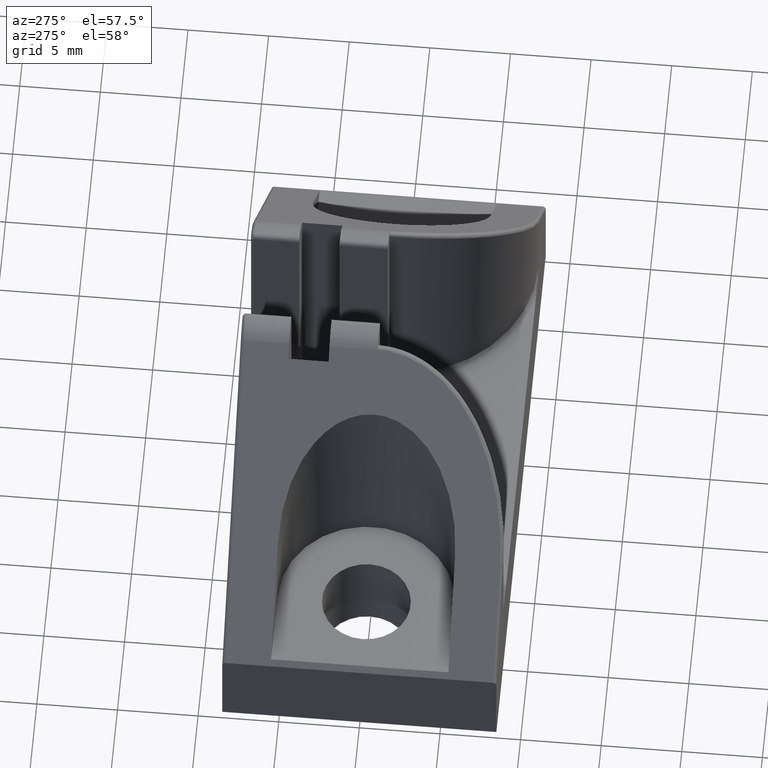
[diagram: clean part render]
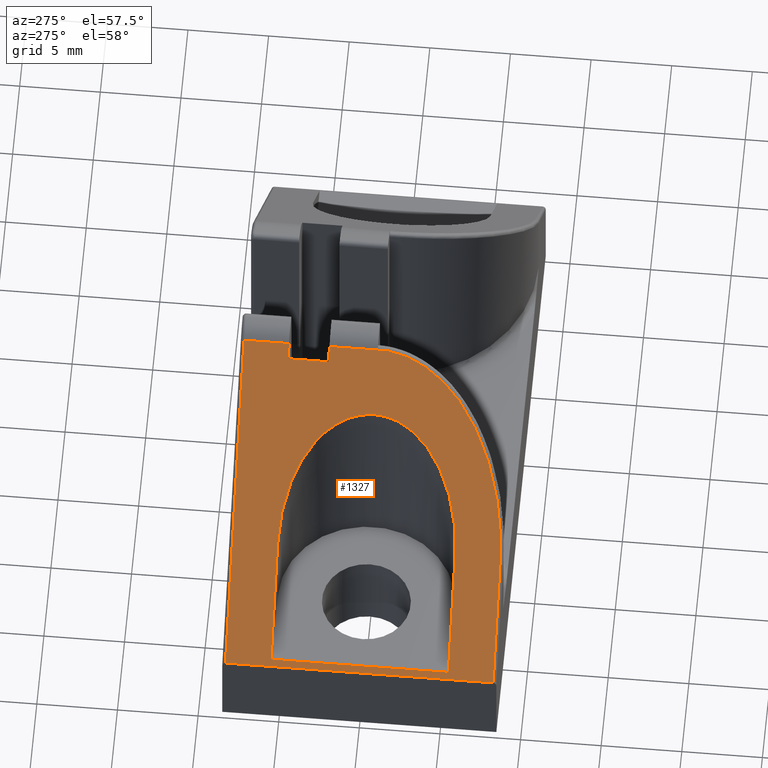
[diagram: same view with one face highlighted and labeled with its STEP entity id]
A machine part, auxiliary view. The second image highlights one B-rep face of the part: STEP entity #1327.
In plain terms, the highlighted planar face has unit normal (-0.7848, 0, 0.6198).
Its self-contained STEP definition (entity closure, byte-faithful):
#19=B_SPLINE_CURVE_WITH_KNOTS('',3,(#2435,#2436,#2437,#2438,#2439,#2440,
#2441,#2442,#2443,#2444,#2445,#2446,#2447,#2448,#2449,#2450,#2451,#2452,
#2453,#2454,#2455,#2456,#2457,#2458,#2459,#2460,#2461,#2462,#2463,#2464,
#2465,#2466,#2467,#2468,#2469,#2470,#2471,#2472,#2473,#2474,#2475,#2476,
#2477,#2478,#2479,#2480,#2481,#2482,#2483,#2484,#2485,#2486,#2487,#2488,
#2489,#2490,#2491,#2492,#2493,#2494,#2495,#2496,#2497,#2498,#2499,#2500,
#2501,#2502,#2503,#2504,#2505,#2506,#2507,#2508,#2509,#2510,#2511,#2512,
#2513,#2514,#2515,#2516,#2517,#2518,#2519,#2520,#2521,#2522,#2523,#2524,
#2525,#2526,#2527,#2528,#2529,#2530,#2531,#2532,#2533,#2534,#2535,#2536,
#2537,#2538,#2539,#2540,#2541,#2542,#2543,#2544,#2545,#2546,#2547,#2548,
#2549,#2550,#2551,#2552,#2553,#2554,#2555,#2556,#2557,#2558),
 .UNSPECIFIED.,.F.,.F.,(4,3,3,3,3,3,3,3,3,3,3,3,3,3,3,3,3,3,3,3,3,3,3,3,
3,3,3,3,3,3,3,3,3,3,3,3,3,3,3,3,3,4),(-69.088201980225,-68.6151122974842,
-68.5686881133644,-68.4944712512097,-68.0491732427177,-67.9007405221944,
-67.3530433922091,-67.307009793179,-67.0101495746902,-66.7132790641638,
-66.1195483351485,-65.5608625875906,-65.5258176061331,-64.9748415939148,
-64.9320868771178,-64.3837014398548,-64.3383561481025,-63.7604489799912,
-63.1930685703342,-63.1508946900719,-62.8540356135924,-62.5571639610566,
-61.9634332320413,-61.369702503026,-60.7759717740107,-60.1822410449954,
-59.5680239844509,-58.9947795869647,-58.6979168506472,-58.4010488579494,
-57.8073181289341,-57.2135873999188,-56.6198566709035,-56.0261259418882,
-55.4323952128729,-54.8386644838576,-54.541805350267,-53.8750520091837,
-53.651203025827,-53.5027690604448,-52.7649401761457,-52.4637415677966),
 .UNSPECIFIED.);
#52=FACE_BOUND('',#201,.T.);
#57=ELLIPSE('',#1412,8.87359081631341,5.49994999997799);
#74=PLANE('',#1451);
#118=FACE_OUTER_BOUND('',#200,.T.);
#200=EDGE_LOOP('',(#987,#988,#989,#990,#991,#992,#993,#994,#995));
#201=EDGE_LOOP('',(#996,#997,#998,#999));
#344=LINE('',#1972,#446);
#348=LINE('',#1984,#450);
#350=LINE('',#1987,#452);
#364=LINE('',#2030,#466);
#365=LINE('',#2174,#467);
#366=LINE('',#2181,#468);
#374=LINE('',#3070,#476);
#376=LINE('',#3075,#478);
#383=LINE('',#3095,#485);
#384=LINE('',#3097,#486);
#385=LINE('',#3098,#487);
#446=VECTOR('',#1579,7.59947043811487);
#450=VECTOR('',#1591,7.59947043811487);
#452=VECTOR('',#1595,10.999899999956);
#466=VECTOR('',#1635,0.997078000057022);
#467=VECTOR('',#1644,3.64306990235619);
#468=VECTOR('',#1651,7.81375141898086);
#476=VECTOR('',#1677,16.5998999939716);
#478=VECTOR('',#1681,21.1645131956356);
#485=VECTOR('',#1700,2.49999999998997);
#486=VECTOR('',#1701,0.997078000057022);
#487=VECTOR('',#1702,2.79999999700795);
#550=VERTEX_POINT('',#1970);
#551=VERTEX_POINT('',#1971);
#553=VERTEX_POINT('',#1977);
#555=VERTEX_POINT('',#1983);
#570=VERTEX_POINT('',#2027);
#571=VERTEX_POINT('',#2029);
#575=VERTEX_POINT('',#2158);
#577=VERTEX_POINT('',#2178);
#578=VERTEX_POINT('',#2180);
#589=VERTEX_POINT('',#3063);
#593=VERTEX_POINT('',#3074);
#600=VERTEX_POINT('',#3094);
#601=VERTEX_POINT('',#3096);
#678=EDGE_CURVE('',#550,#551,#344,.T.);
#681=EDGE_CURVE('',#551,#553,#57,.T.);
#684=EDGE_CURVE('',#553,#555,#348,.T.);
#686=EDGE_CURVE('',#550,#555,#350,.T.);
#706=EDGE_CURVE('',#571,#570,#364,.T.);
#713=EDGE_CURVE('',#571,#575,#365,.T.);
#716=EDGE_CURVE('',#577,#578,#366,.T.);
#720=EDGE_CURVE('',#575,#577,#19,.T.);
#737=EDGE_CURVE('',#589,#578,#374,.T.);
#739=EDGE_CURVE('',#593,#589,#376,.T.);
#749=EDGE_CURVE('',#600,#570,#383,.T.);
#750=EDGE_CURVE('',#601,#600,#384,.T.);
#751=EDGE_CURVE('',#593,#601,#385,.T.);
#987=ORIENTED_EDGE('',*,*,#720,.F.);
#988=ORIENTED_EDGE('',*,*,#713,.F.);
#989=ORIENTED_EDGE('',*,*,#706,.T.);
#990=ORIENTED_EDGE('',*,*,#749,.F.);
#991=ORIENTED_EDGE('',*,*,#750,.F.);
#992=ORIENTED_EDGE('',*,*,#751,.F.);
#993=ORIENTED_EDGE('',*,*,#739,.T.);
#994=ORIENTED_EDGE('',*,*,#737,.T.);
#995=ORIENTED_EDGE('',*,*,#716,.F.);
#996=ORIENTED_EDGE('',*,*,#686,.T.);
#997=ORIENTED_EDGE('',*,*,#684,.F.);
#998=ORIENTED_EDGE('',*,*,#681,.F.);
#999=ORIENTED_EDGE('',*,*,#678,.F.);
#1327=ADVANCED_FACE('',(#118,#52),#74,.T.);
#1412=AXIS2_PLACEMENT_3D('',#1978,#1584,#1585);
#1451=AXIS2_PLACEMENT_3D('',#3093,#1698,#1699);
#1579=DIRECTION('',(0.619811090440028,-1.46092156508284E-16,0.784751051077693));
#1584=DIRECTION('center_axis',(-0.784751051077679,3.795248E-17,0.619811090440046));
#1585=DIRECTION('ref_axis',(0.619811090440046,4.805214E-17,0.784751051077679));
#1591=DIRECTION('',(-0.619811090440028,1.46092156508284E-16,-0.784751051077693));
#1595=DIRECTION('',(0.,1.,0.));
#1635=DIRECTION('',(-0.619811090440594,5.56738301598102E-16,-0.784751051077246));
#1644=DIRECTION('',(0.,-1.,0.));
#1651=DIRECTION('',(-0.619811090440052,0.,-0.784751051077674));
#1677=DIRECTION('',(0.,-1.,0.));
#1681=DIRECTION('',(-0.619811090440046,-1.04913636743046E-16,-0.784751051077679));
#1698=DIRECTION('center_axis',(-0.784751051077679,3.795248E-17,0.619811090440046));
#1699=DIRECTION('ref_axis',(0.619811090440046,0.,0.784751051077679));
#1700=DIRECTION('',(0.,-1.,0.));
#1701=DIRECTION('',(-0.619811090440594,0.,-0.784751051077246));
#1702=DIRECTION('',(0.,-1.,0.));
#1970=CARTESIAN_POINT('',(-29.7102360589147,-5.49989999997797,5.99999805322659));
#1971=CARTESIAN_POINT('',(-24.9999999999,-5.49989999997797,11.9636904671711));
#1972=CARTESIAN_POINT('',(-29.7102360589147,-5.49989999997797,5.99999805322659));
#1977=CARTESIAN_POINT('',(-24.9999999999,5.499999999978,11.9636904671711));
#1978=CARTESIAN_POINT('Origin',(-24.9999999999,5.0000000017E-5,11.9636904671711));
#1983=CARTESIAN_POINT('',(-29.7102360589147,5.499999999978,5.99999805322659));
#1984=CARTESIAN_POINT('',(-24.9999999999,5.499999999978,11.9636904671711));
#1987=CARTESIAN_POINT('',(-29.7102360589147,-5.49989999997797,5.99999805322659));
#2027=CARTESIAN_POINT('',(-17.49999999993,2.99999999998821,21.4595400475328));
#2029=CARTESIAN_POINT('',(-16.8819999974603,2.99999999998821,22.2419980560835));
#2030=CARTESIAN_POINT('',(-16.8819999974603,2.99999999998821,22.2419980560835));
#2158=CARTESIAN_POINT('',(-16.8819999974594,-0.643069902367983,22.2419980560844));
#2174=CARTESIAN_POINT('',(-16.8819999974603,2.99999999998821,22.2419980560835));
#2178=CARTESIAN_POINT('',(-25.1569502124539,-8.29989999698546,11.7649737191659));
#2180=CARTESIAN_POINT('',(-29.99999999988,-8.29989999698546,5.63312408026104));
#2181=CARTESIAN_POINT('',(-25.1569502124539,-8.29989999698546,11.7649737191659));
#2435=CARTESIAN_POINT('Ctrl Pts',(-16.8819999974594,-0.643069902367983,
22.2419980560844));
#2436=CARTESIAN_POINT('Ctrl Pts',(-16.8911088207661,-0.760281202575491,
22.2304652539545));
#2437=CARTESIAN_POINT('Ctrl Pts',(-16.9027080250066,-0.877300887217781,
22.2157793446016));
#2438=CARTESIAN_POINT('Ctrl Pts',(-16.9167845582387,-0.994019413069922,
22.1979568611323));
#2439=CARTESIAN_POINT('Ctrl Pts',(-16.9181658852775,-1.00547297574953,22.1962079448396));
#2440=CARTESIAN_POINT('Ctrl Pts',(-16.9195710921083,-1.01692365142865,22.1944287939576));
#2441=CARTESIAN_POINT('Ctrl Pts',(-16.9210001827456,-1.0283713444347,22.1926194034234));
#2442=CARTESIAN_POINT('Ctrl Pts',(-16.9232848243575,-1.04667240604578,22.1897267884985));
#2443=CARTESIAN_POINT('Ctrl Pts',(-16.9256305060204,-1.06496584423065,22.1867568898398));
#2444=CARTESIAN_POINT('Ctrl Pts',(-16.9280367982853,-1.08325159068742,22.1837102512653));
#2445=CARTESIAN_POINT('Ctrl Pts',(-16.9424744492759,-1.19296528976584,22.1654305497203));
#2446=CARTESIAN_POINT('Ctrl Pts',(-16.9591179146491,-1.30238615735254,22.1443580372391));
#2447=CARTESIAN_POINT('Ctrl Pts',(-16.9779386123257,-1.41143163335236,22.1205289019517));
#2448=CARTESIAN_POINT('Ctrl Pts',(-16.9842121803746,-1.44778013784766,22.1125858541253));
#2449=CARTESIAN_POINT('Ctrl Pts',(-16.9907277554093,-1.48408681495602,22.1043363980233));
#2450=CARTESIAN_POINT('Ctrl Pts',(-16.9974844638901,-1.52034882090143,22.0957816396033));
#2451=CARTESIAN_POINT('Ctrl Pts',(-17.0224158255877,-1.65415083243758,22.0642157111623));
#2452=CARTESIAN_POINT('Ctrl Pts',(-17.0506393699034,-1.78733881498807,22.0284815074076));
#2453=CARTESIAN_POINT('Ctrl Pts',(-17.0821175596852,-1.91975504612397,21.9886265534654));
#2454=CARTESIAN_POINT('Ctrl Pts',(-17.0847632817226,-1.9308845470022,21.985276769673));
#2455=CARTESIAN_POINT('Ctrl Pts',(-17.087432008353,-1.94200857348481,21.9818978594583));
#2456=CARTESIAN_POINT('Ctrl Pts',(-17.0901237241645,-1.95312701909096,21.9784898423349));
#2457=CARTESIAN_POINT('Ctrl Pts',(-17.1074819877102,-2.02482734801259,21.9565123144163));
#2458=CARTESIAN_POINT('Ctrl Pts',(-17.1257969275086,-2.09630042121747,21.9333235261563));
#2459=CARTESIAN_POINT('Ctrl Pts',(-17.1450631666671,-2.16751075521773,21.9089302844091));
#2460=CARTESIAN_POINT('Ctrl Pts',(-17.1643300737793,-2.23872355805477,21.8845361969568));
#2461=CARTESIAN_POINT('Ctrl Pts',(-17.1845483937392,-2.30967351441826,21.8589375132377));
#2462=CARTESIAN_POINT('Ctrl Pts',(-17.2057060718431,-2.38034801449181,21.8321494852163));
#2463=CARTESIAN_POINT('Ctrl Pts',(-17.2480206945471,-2.52169456446424,21.7785743578726));
#2464=CARTESIAN_POINT('Ctrl Pts',(-17.2941051901085,-2.66191252764959,21.7202260933792));
#2465=CARTESIAN_POINT('Ctrl Pts',(-17.3438940766058,-2.80080255538341,21.6571876748395));
#2466=CARTESIAN_POINT('Ctrl Pts',(-17.3907441719664,-2.93149459334057,21.5978701016272));
#2467=CARTESIAN_POINT('Ctrl Pts',(-17.4408742037293,-3.06101027251687,21.5343998021992));
#2468=CARTESIAN_POINT('Ctrl Pts',(-17.4942210083514,-3.18918827545005,21.4668567544185));
#2469=CARTESIAN_POINT('Ctrl Pts',(-17.4975673220653,-3.19722856599922,21.4626199453225));
#2470=CARTESIAN_POINT('Ctrl Pts',(-17.5009262909304,-3.20526357622406,21.4583671135239));
#2471=CARTESIAN_POINT('Ctrl Pts',(-17.5042978984108,-3.2132932594126,21.4540982799408));
#2472=CARTESIAN_POINT('Ctrl Pts',(-17.5573061970901,-3.33953566670182,21.3869838228454));
#2473=CARTESIAN_POINT('Ctrl Pts',(-17.613438749611,-3.46446489916466,21.3159137183428));
#2474=CARTESIAN_POINT('Ctrl Pts',(-17.6726134253417,-3.58794917080525,21.2409918896866));
#2475=CARTESIAN_POINT('Ctrl Pts',(-17.6772052704426,-3.59753132129057,21.2351780947208));
#2476=CARTESIAN_POINT('Ctrl Pts',(-17.6818154328594,-3.6071047446387,21.2293411077854));
#2477=CARTESIAN_POINT('Ctrl Pts',(-17.6864438735172,-3.61666936557359,21.2234809783828));
#2478=CARTESIAN_POINT('Ctrl Pts',(-17.7458097083108,-3.7393482002514,21.1483171165779));
#2479=CARTESIAN_POINT('Ctrl Pts',(-17.8081873801677,-3.86057978894234,21.0693399134901));
#2480=CARTESIAN_POINT('Ctrl Pts',(-17.873524029698,-3.98018701092455,20.9866163140198));
#2481=CARTESIAN_POINT('Ctrl Pts',(-17.8789266338406,-3.99007717942269,20.9797760051824));
#2482=CARTESIAN_POINT('Ctrl Pts',(-17.8843494514237,-3.99995624019489,20.9729101038395));
#2483=CARTESIAN_POINT('Ctrl Pts',(-17.8897924425602,-4.00982409251476,20.9660186604929));
#2484=CARTESIAN_POINT('Ctrl Pts',(-17.9591611349249,-4.13558582805886,20.8781900380551));
#2485=CARTESIAN_POINT('Ctrl Pts',(-18.0318090504994,-4.25952650828017,20.7862095475716));
#2486=CARTESIAN_POINT('Ctrl Pts',(-18.1076324627706,-4.38148235571184,20.6902085185583));
#2487=CARTESIAN_POINT('Ctrl Pts',(-18.182074728051,-4.50121673952646,20.595956178088));
#2488=CARTESIAN_POINT('Ctrl Pts',(-18.2595769043601,-4.61903722531214,20.4978296436366));
#2489=CARTESIAN_POINT('Ctrl Pts',(-18.3400259606574,-4.734813969886,20.3959720253052));
#2490=CARTESIAN_POINT('Ctrl Pts',(-18.3460058091149,-4.74341975619746,20.3884008597764));
#2491=CARTESIAN_POINT('Ctrl Pts',(-18.3520019243994,-4.75201424766984,20.380809098602));
#2492=CARTESIAN_POINT('Ctrl Pts',(-18.3580142527313,-4.76059738947372,20.373196809873));
#2493=CARTESIAN_POINT('Ctrl Pts',(-18.4003346231831,-4.82101354120905,20.3196144269399));
#2494=CARTESIAN_POINT('Ctrl Pts',(-18.4434608735824,-4.88087330475721,20.2650117086983));
#2495=CARTESIAN_POINT('Ctrl Pts',(-18.4873708960929,-4.94015110015604,20.2094166461464));
#2496=CARTESIAN_POINT('Ctrl Pts',(-18.5312827787955,-4.99943140678309,20.1538192283804));
#2497=CARTESIAN_POINT('Ctrl Pts',(-18.5759783887479,-5.05812965833671,20.0972295231436));
#2498=CARTESIAN_POINT('Ctrl Pts',(-18.6214515744448,-5.11622555224553,20.0396553190299));
#2499=CARTESIAN_POINT('Ctrl Pts',(-18.7123960195066,-5.23241487900898,19.9245093497571));
#2500=CARTESIAN_POINT('Ctrl Pts',(-18.8064346464263,-5.34618953812483,19.8054457955643));
#2501=CARTESIAN_POINT('Ctrl Pts',(-18.9034450783871,-5.45736272693468,19.6826195996138));
#2502=CARTESIAN_POINT('Ctrl Pts',(-19.0004555103478,-5.56853591574453,19.5597934036632));
#2503=CARTESIAN_POINT('Ctrl Pts',(-19.1004372816056,-5.67710749746048,19.4332051555771));
#2504=CARTESIAN_POINT('Ctrl Pts',(-19.2032442147991,-5.78292934256239,19.3030399324534));
#2505=CARTESIAN_POINT('Ctrl Pts',(-19.3060511479926,-5.8887511876643,19.1728747093297));
#2506=CARTESIAN_POINT('Ctrl Pts',(-19.4116814102605,-5.99182742718194,19.0391348317115));
#2507=CARTESIAN_POINT('Ctrl Pts',(-19.5199767222984,-6.09203599079412,18.9020206993064));
#2508=CARTESIAN_POINT('Ctrl Pts',(-19.6282720343363,-6.1922445544063,18.7649065669014));
#2509=CARTESIAN_POINT('Ctrl Pts',(-19.7392303733191,-6.28959337756339,18.6244207406559));
#2510=CARTESIAN_POINT('Ctrl Pts',(-19.8527080532443,-6.38390505587824,18.4807451434157));
#2511=CARTESIAN_POINT('Ctrl Pts',(-19.9701012141418,-6.48147090349005,18.3321121037291));
#2512=CARTESIAN_POINT('Ctrl Pts',(-20.0901903240136,-6.57578610089077,18.1800656872509));
#2513=CARTESIAN_POINT('Ctrl Pts',(-20.2127931920465,-6.66669942486693,18.0248365681889));
#2514=CARTESIAN_POINT('Ctrl Pts',(-20.3272175734749,-6.75154818107044,17.8799623396057));
#2515=CARTESIAN_POINT('Ctrl Pts',(-20.4438313125891,-6.83343444796374,17.7323161361876));
#2516=CARTESIAN_POINT('Ctrl Pts',(-20.5624736769384,-6.91227002511285,17.5821014634244));
#2517=CARTESIAN_POINT('Ctrl Pts',(-20.6239143069356,-6.95309614614305,17.5043106660139));
#2518=CARTESIAN_POINT('Ctrl Pts',(-20.6859002480208,-6.99310687011972,17.4258294429923));
#2519=CARTESIAN_POINT('Ctrl Pts',(-20.7484053240935,-7.03228983322997,17.3466909362573));
#2520=CARTESIAN_POINT('Ctrl Pts',(-20.8109115069082,-7.07147349013074,17.2675510282616));
#2521=CARTESIAN_POINT('Ctrl Pts',(-20.8739367958003,-7.1098293889521,17.1877538731706));
#2522=CARTESIAN_POINT('Ctrl Pts',(-20.9374638877748,-7.14733973752184,17.1073213785707));
#2523=CARTESIAN_POINT('Ctrl Pts',(-21.0645169469056,-7.22235977049861,16.9464578135182));
#2524=CARTESIAN_POINT('Ctrl Pts',(-21.193569066844,-7.29400001551523,16.7830632109672));
#2525=CARTESIAN_POINT('Ctrl Pts',(-21.3244413253938,-7.36213631280574,16.6173641067756));
#2526=CARTESIAN_POINT('Ctrl Pts',(-21.4553135839436,-7.43027261009624,16.4516650025841));
#2527=CARTESIAN_POINT('Ctrl Pts',(-21.588005721547,-7.49490502979689,16.2836617253595));
#2528=CARTESIAN_POINT('Ctrl Pts',(-21.7223273299814,-7.55594676321301,16.1135953534806));
#2529=CARTESIAN_POINT('Ctrl Pts',(-21.8566489384158,-7.61698849662912,15.9435289816018));
#2530=CARTESIAN_POINT('Ctrl Pts',(-21.9925998046108,-7.67443969589926,15.7713997848423));
#2531=CARTESIAN_POINT('Ctrl Pts',(-22.1299823538418,-7.72824819240924,15.5974579151739));
#2532=CARTESIAN_POINT('Ctrl Pts',(-22.2673649030728,-7.78205668891922,15.4235160455055));
#2533=CARTESIAN_POINT('Ctrl Pts',(-22.4061800254782,-7.83221921349093,15.2477603759351));
#2534=CARTESIAN_POINT('Ctrl Pts',(-22.5462338374866,-7.87864324085347,15.0704363850026));
#2535=CARTESIAN_POINT('Ctrl Pts',(-22.686287649495,-7.92506726821602,14.8931123940701));
#2536=CARTESIAN_POINT('Ctrl Pts',(-22.8275802628046,-7.9677510709365,14.7142199403622));
#2537=CARTESIAN_POINT('Ctrl Pts',(-22.969911017284,-8.00662670752545,14.5340130823353));
#2538=CARTESIAN_POINT('Ctrl Pts',(-23.1122417717635,-8.04550234411439,14.3538062243084));
#2539=CARTESIAN_POINT('Ctrl Pts',(-23.2556104834599,-8.08056992945461,14.1722851949191));
#2540=CARTESIAN_POINT('Ctrl Pts',(-23.3998119887677,-8.11179314654775,13.9897097543704));
#2541=CARTESIAN_POINT('Ctrl Pts',(-23.4719112280965,-8.12740442742174,13.898423950137));
#2542=CARTESIAN_POINT('Ctrl Pts',(-23.5442217238284,-8.14205548225485,13.8068706713077));
#2543=CARTESIAN_POINT('Ctrl Pts',(-23.6167129449133,-8.15574218489872,13.7150885736232));
#2544=CARTESIAN_POINT('Ctrl Pts',(-23.7795301143667,-8.18648287529229,13.508943593199));
#2545=CARTESIAN_POINT('Ctrl Pts',(-23.9432593592222,-8.21235537273555,13.3016438215099));
#2546=CARTESIAN_POINT('Ctrl Pts',(-24.1076182317264,-8.23330340079637,13.0935468710262));
#2547=CARTESIAN_POINT('Ctrl Pts',(-24.1627984074356,-8.2403362786176,13.0236825179962));
#2548=CARTESIAN_POINT('Ctrl Pts',(-24.2180494968254,-8.24681452463089,12.9537283803418));
#2549=CARTESIAN_POINT('Ctrl Pts',(-24.2733606612332,-8.25273729897485,12.8836981809697));
#2550=CARTESIAN_POINT('Ctrl Pts',(-24.310037421341,-8.25666468282425,12.8372612482061));
#2551=CARTESIAN_POINT('Ctrl Pts',(-24.3467397811463,-8.26034843433143,12.7907919032712));
#2552=CARTESIAN_POINT('Ctrl Pts',(-24.3834652064066,-8.26378858605732,12.744293354826));
#2553=CARTESIAN_POINT('Ctrl Pts',(-24.5660182998003,-8.28088873765134,12.5131604599221));
#2554=CARTESIAN_POINT('Ctrl Pts',(-24.7491417143711,-8.29196582892415,12.2813054732159));
#2555=CARTESIAN_POINT('Ctrl Pts',(-24.9324293874816,-8.29691154047272,12.0492425167121));
#2556=CARTESIAN_POINT('Ctrl Pts',(-25.0072516033683,-8.29893049292555,11.9545091157357));
#2557=CARTESIAN_POINT('Ctrl Pts',(-25.0821011374471,-8.29992827204644,11.8597411268319));
#2558=CARTESIAN_POINT('Ctrl Pts',(-25.1569502124537,-8.29989999698546,11.7649737191658));
#3063=CARTESIAN_POINT('',(-29.99999999988,8.29999999698612,5.63312408026104));
#3070=CARTESIAN_POINT('',(-29.99999999988,8.29999999698612,5.63312408026104));
#3074=CARTESIAN_POINT('',(-16.8819999974603,8.29999999698612,22.2419980560835));
#3075=CARTESIAN_POINT('',(-16.8819999974603,8.29999999698612,22.2419980560835));
#3093=CARTESIAN_POINT('Origin',(-16.8819999974603,8.49999999996635,22.2419980560835));
#3094=CARTESIAN_POINT('',(-17.49999999993,5.49999999997817,21.4595400475328));
#3095=CARTESIAN_POINT('',(-17.49999999993,5.49999999997817,21.4595400475328));
#3096=CARTESIAN_POINT('',(-16.8819999974603,5.49999999997817,22.2419980560835));
#3097=CARTESIAN_POINT('',(-16.8819999974603,5.49999999997817,22.2419980560835));
#3098=CARTESIAN_POINT('',(-16.8819999974603,8.29999999698612,22.2419980560835));